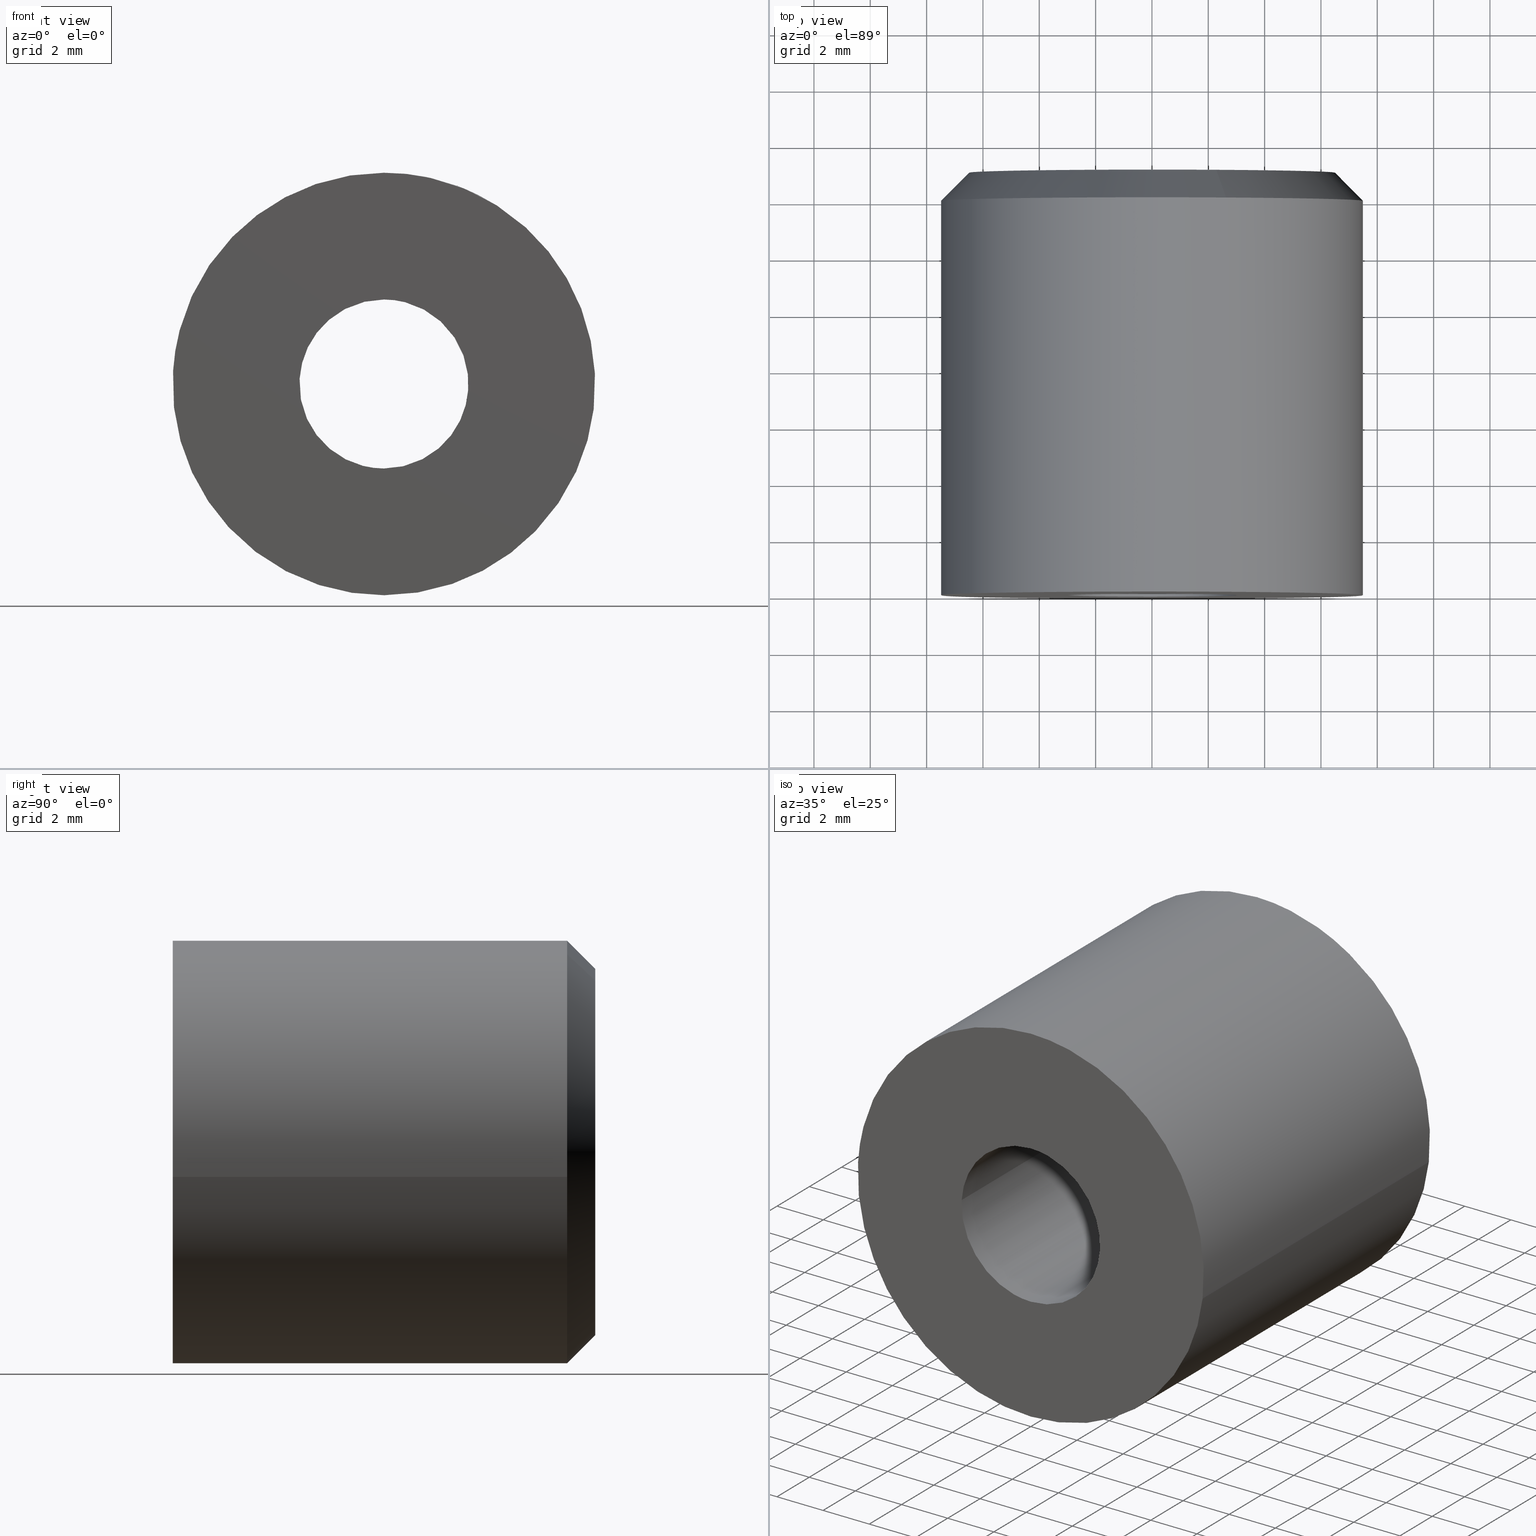
[diagram: canonical four-view strip — front | top / right | iso, engineering-drawing reading convention]
A machine part, canonical four-view strip (front | top / right | iso — engineering-drawing reading convention). The complete STEP part file that produces these views, byte-faithful:
ISO-10303-21;
HEADER;
/****************************************************************
 * Generated by software with PDE/Lib inside                    *
 * PDElib Version 4.4.1-0003, patched  Thursday August 19 11:58 *
 * International Technegroup Inc. (www.iti-oh.com)              *
 ****************************************************************/
FILE_DESCRIPTION((''),'2;1');
FILE_NAME('','2005-12-14T16:28:22',(''),(''),'','CADfix','');
FILE_SCHEMA(('AUTOMOTIVE_DESIGN'));
ENDSEC;
DATA;
#5=APPLICATION_CONTEXT('automotive design');
#6=APPLICATION_PROTOCOL_DEFINITION('Draft International Standard','automotive_design',1998,#5);
#7=PRODUCT_CONTEXT('None',#5,'mechanical');
#8=PRODUCT('boss','','None',(#7));
#9=PRODUCT_RELATED_PRODUCT_CATEGORY('part','description',(#8));
#10=PRODUCT_DEFINITION_FORMATION('None','None',#8);
#11=PRODUCT_DEFINITION_CONTEXT('part definition',#5,'design');
#12=PRODUCT_DEFINITION('None','None',#10,#11);
#18=(NAMED_UNIT(*)PLANE_ANGLE_UNIT()SI_UNIT($,.RADIAN.));
#19=DIMENSIONAL_EXPONENTS(0.0,0.0,0.0,0.0,0.0,0.0,0.0);
#20=PLANE_ANGLE_MEASURE_WITH_UNIT(PLANE_ANGLE_MEASURE(0.017453292500000),#18);
#24=(CONVERSION_BASED_UNIT('DEGREE',#20)NAMED_UNIT(#19)PLANE_ANGLE_UNIT());
#28=(NAMED_UNIT(*)SI_UNIT($,.STERADIAN.)SOLID_ANGLE_UNIT());
#32=(LENGTH_UNIT()NAMED_UNIT(*)SI_UNIT(.MILLI.,.METRE.));
#34=UNCERTAINTY_MEASURE_WITH_UNIT(LENGTH_MEASURE(0.001000000000000),#32,'DISTANCE_ACCURACY_VALUE','');
#36=(GEOMETRIC_REPRESENTATION_CONTEXT(3)GLOBAL_UNCERTAINTY_ASSIGNED_CONTEXT((#34))GLOBAL_UNIT_ASSIGNED_CONTEXT((#24,#28,#32))REPRESENTATION_CONTEXT('None','None'));
#37=AXIS2_PLACEMENT_3D('',#38,#39,#40);
#38=CARTESIAN_POINT('',(0.0,0.0,0.0));
#39=DIRECTION('',(0.0,0.0,1.0));
#40=DIRECTION('',(1.0,0.0,0.0));
#41=ADVANCED_BREP_SHAPE_REPRESENTATION('',(#37,#749),#36);
#42=PRODUCT_DEFINITION_SHAPE('','',#12);
#43=SHAPE_DEFINITION_REPRESENTATION(#42,#41);
#44=CARTESIAN_POINT('',(2.980407580307141,14.905037499999999,0.342301994221081));
#45=CARTESIAN_POINT('',(2.693445457758243,14.905037500000009,2.840867879739621));
#46=CARTESIAN_POINT('',(0.183145618604571,14.905037500000001,2.994404395265600));
#47=CARTESIAN_POINT('',(-2.811258776661029,14.905037500000006,3.177550013870171));
#48=CARTESIAN_POINT('',(-2.994404395265600,14.905037500000001,0.183145618604571));
#49=CARTESIAN_POINT('',(2.980407580307141,-0.372625937500001,0.342301994221081));
#50=CARTESIAN_POINT('',(2.693445457758243,-0.372625937500001,2.840867879739621));
#51=CARTESIAN_POINT('',(0.183145618604571,-0.372625937500001,2.994404395265600));
#52=CARTESIAN_POINT('',(-2.811258776661029,-0.372625937500001,3.177550013870171));
#53=CARTESIAN_POINT('',(-2.994404395265600,-0.372625937500001,0.183145618604571));
#61=(BOUNDED_SURFACE()B_SPLINE_SURFACE(2,1,((#44,#49),(#45,#50),(#46,#51),(#47,#52),(#48,#53)),.UNSPECIFIED.,.F.,.F.,.U.)B_SPLINE_SURFACE_WITH_KNOTS((3,2,3),(2,2),(0.0,4.374095218659882,9.344657967137021),(0.0,15.277663437500010),.UNSPECIFIED.)GEOMETRIC_REPRESENTATION_ITEM()RATIONAL_B_SPLINE_SURFACE(((0.938140952186599,0.938140952186599),(0.742253967444162,0.742253967444162),(1.0,1.0),(0.707106781186548,0.707106781186548),(1.0,1.0)))REPRESENTATION_ITEM('')SURFACE());
#62=CARTESIAN_POINT('',(2.980407580306507,14.541499999999999,0.342301994226599));
#63=VERTEX_POINT('',#62);
#64=CARTESIAN_POINT('',(0.0,14.541499999999999,3.0));
#65=VERTEX_POINT('',#64);
#66=CARTESIAN_POINT('',(2.980407580306507,14.541500000000003,0.342301994226599));
#67=CARTESIAN_POINT('',(2.675169017146770,14.541500000000001,3.000000000000000));
#68=CARTESIAN_POINT('',(0.0,14.541499999999999,3.0));
#76=(BOUNDED_CURVE()B_SPLINE_CURVE(2,(#66,#67,#68),.UNSPECIFIED.,.F.,.U.)B_SPLINE_CURVE_WITH_KNOTS((3,3),(0.269767755877236,0.500000000000000),.UNSPECIFIED.)CURVE()GEOMETRIC_REPRESENTATION_ITEM()RATIONAL_B_SPLINE_CURVE((0.957343736459428,0.730266147776956,1.0))REPRESENTATION_ITEM(''));
#77=EDGE_CURVE('',#63,#65,#76,.T.);
#78=ORIENTED_EDGE('',*,*,#77,.F.);
#79=CARTESIAN_POINT('',(2.980407962932764,7.988144E-016,0.342298662684685));
#80=VERTEX_POINT('',#79);
#81=CARTESIAN_POINT('',(2.980407580306507,14.541499999999999,0.342301994226599));
#82=CARTESIAN_POINT('',(2.980407962932764,7.988144E-016,0.342298662684685));
#83=QUASI_UNIFORM_CURVE('',1,(#81,#82),.UNSPECIFIED.,.F.,.U.);
#84=EDGE_CURVE('',#63,#80,#83,.T.);
#85=ORIENTED_EDGE('',*,*,#84,.T.);
#86=CARTESIAN_POINT('',(0.0,0.0,3.0));
#87=VERTEX_POINT('',#86);
#88=CARTESIAN_POINT('',(2.980407962932764,7.988144E-016,0.342298662684685));
#89=CARTESIAN_POINT('',(2.675172027152508,0.0,3.0));
#90=CARTESIAN_POINT('',(0.0,0.0,3.0));
#98=(BOUNDED_CURVE()B_SPLINE_CURVE(2,(#88,#89,#90),.UNSPECIFIED.,.F.,.U.)B_SPLINE_CURVE_WITH_KNOTS((3,3),(0.269767566702437,0.500000000000000),.UNSPECIFIED.)CURVE()GEOMETRIC_REPRESENTATION_ITEM()RATIONAL_B_SPLINE_CURVE((0.957344109625193,0.730265926144893,1.0))REPRESENTATION_ITEM(''));
#99=EDGE_CURVE('',#80,#87,#98,.T.);
#100=ORIENTED_EDGE('',*,*,#99,.T.);
#101=CARTESIAN_POINT('',(-2.994404452605104,-8.881784E-016,0.183144681107156));
#102=VERTEX_POINT('',#101);
#103=CARTESIAN_POINT('',(0.0,0.0,3.0));
#104=CARTESIAN_POINT('',(-2.822119971134776,0.0,3.000000000000001));
#105=CARTESIAN_POINT('',(-2.994404452605104,-8.881784E-016,0.183144681107156));
#113=(BOUNDED_CURVE()B_SPLINE_CURVE(2,(#103,#104,#105),.UNSPECIFIED.,.F.,.U.)B_SPLINE_CURVE_WITH_KNOTS((3,3),(0.500000000000000,0.739333070284946),.UNSPECIFIED.)CURVE()GEOMETRIC_REPRESENTATION_ITEM()RATIONAL_B_SPLINE_CURVE((1.0,0.719603866702944,0.976072273229979))REPRESENTATION_ITEM(''));
#114=EDGE_CURVE('',#87,#102,#113,.T.);
#115=ORIENTED_EDGE('',*,*,#114,.T.);
#116=CARTESIAN_POINT('',(-2.994404411156125,14.541499999999999,0.183145358796415));
#117=VERTEX_POINT('',#116);
#118=CARTESIAN_POINT('',(-2.994404411156125,14.541499999999999,0.183145358796415));
#119=CARTESIAN_POINT('',(-2.994404452605104,-8.881784E-016,0.183144681107156));
#120=QUASI_UNIFORM_CURVE('',1,(#118,#119),.UNSPECIFIED.,.F.,.U.);
#121=EDGE_CURVE('',#117,#102,#120,.T.);
#122=ORIENTED_EDGE('',*,*,#121,.F.);
#123=CARTESIAN_POINT('',(-2.990752001199405,14.541500000000060,0.235377287183957));
#124=VERTEX_POINT('',#123);
#125=CARTESIAN_POINT('',(-2.990752001199405,14.541500000000058,0.235377287183957));
#126=CARTESIAN_POINT('',(-2.992806128089515,14.541500000000001,0.209277130363528));
#127=CARTESIAN_POINT('',(-2.994404411156125,14.541499999999997,0.183145358796415));
#135=(BOUNDED_CURVE()B_SPLINE_CURVE(2,(#125,#126,#127),.UNSPECIFIED.,.F.,.U.)B_SPLINE_CURVE_WITH_KNOTS((3,3),(0.736331300632719,0.739332992183858),.UNSPECIFIED.)CURVE()GEOMETRIC_REPRESENTATION_ITEM()RATIONAL_B_SPLINE_CURVE((0.969723356171716,0.972855506808519,0.976072105844379))REPRESENTATION_ITEM(''));
#136=EDGE_CURVE('',#124,#117,#135,.T.);
#137=ORIENTED_EDGE('',*,*,#136,.F.);
#138=CARTESIAN_POINT('',(0.0,14.541499999999999,3.0));
#139=CARTESIAN_POINT('',(-2.773171474973852,14.541500000000005,3.0));
#140=CARTESIAN_POINT('',(-2.990752001199405,14.541500000000056,0.235377287183957));
#148=(BOUNDED_CURVE()B_SPLINE_CURVE(2,(#138,#139,#140),.UNSPECIFIED.,.F.,.U.)B_SPLINE_CURVE_WITH_KNOTS((3,3),(0.500000000000000,0.736331300632719),.UNSPECIFIED.)CURVE()GEOMETRIC_REPRESENTATION_ITEM()RATIONAL_B_SPLINE_CURVE((1.0,0.723120658605252,0.969723356171717))REPRESENTATION_ITEM(''));
#149=EDGE_CURVE('',#65,#124,#148,.T.);
#150=ORIENTED_EDGE('',*,*,#149,.F.);
#151=EDGE_LOOP('',(#78,#85,#100,#115,#122,#137,#150));
#152=FACE_OUTER_BOUND('',#151,.T.);
#153=ADVANCED_FACE('',(#152),#61,.F.);
#154=CARTESIAN_POINT('',(-2.994404395265600,14.905037500000001,0.183145618604571));
#155=CARTESIAN_POINT('',(-3.177550013870171,14.905037500000006,-2.811258776661029));
#156=CARTESIAN_POINT('',(-0.183145618604571,14.905037500000001,-2.994404395265600));
#157=CARTESIAN_POINT('',(2.811258776661029,14.905037500000006,-3.177550013870172));
#158=CARTESIAN_POINT('',(2.994404395265600,14.905037500000001,-0.183145618604571));
#159=CARTESIAN_POINT('',(3.010510915184334,14.905037500000008,0.080193654289640));
#160=CARTESIAN_POINT('',(2.980407580307141,14.905037499999999,0.342301994221081));
#161=CARTESIAN_POINT('',(-2.994404395265600,-0.372625937500001,0.183145618604571));
#162=CARTESIAN_POINT('',(-3.177550013870171,-0.372625937500001,-2.811258776661029));
#163=CARTESIAN_POINT('',(-0.183145618604571,-0.372625937500001,-2.994404395265600));
#164=CARTESIAN_POINT('',(2.811258776661029,-0.372625937500001,-3.177550013870172));
#165=CARTESIAN_POINT('',(2.994404395265600,-0.372625937500001,-0.183145618604571));
#166=CARTESIAN_POINT('',(3.010510915184334,-0.372625937500001,0.080193654289640));
#167=CARTESIAN_POINT('',(2.980407580307141,-0.372625937500001,0.342301994221081));
#175=(BOUNDED_SURFACE()B_SPLINE_SURFACE(2,1,((#154,#161),(#155,#162),(#156,#163),(#157,#164),(#158,#165),(#159,#166),(#160,#167)),.UNSPECIFIED.,.F.,.F.,.U.)B_SPLINE_SURFACE_WITH_KNOTS((3,2,2,3),(2,2),(0.0,4.970562748477139,9.941125496954278,10.537593026771541),(0.0,15.277663437500010),.UNSPECIFIED.)GEOMETRIC_REPRESENTATION_ITEM()RATIONAL_B_SPLINE_SURFACE(((1.0,1.0),(0.707106781186548,0.707106781186548),(1.0,1.0),(0.707106781186548,0.707106781186548),(1.0,1.0),(0.964852813742386,0.964852813742386),(0.938140952186599,0.938140952186599)))REPRESENTATION_ITEM('')SURFACE());
#176=CARTESIAN_POINT('',(2.990752001199406,14.541500000000060,-0.235377287183957));
#177=VERTEX_POINT('',#176);
#178=CARTESIAN_POINT('',(2.990752001199406,14.541500000000056,-0.235377287183957));
#179=CARTESIAN_POINT('',(3.000000000000000,14.541500000000003,-0.117870321023428));
#180=CARTESIAN_POINT('',(3.0,14.541499999999999,-1.836910E-016));
#181=CARTESIAN_POINT('',(3.0,14.541500000000003,0.171711705081448));
#182=CARTESIAN_POINT('',(2.980407580306508,14.541499999999997,0.342301994226599));
#190=(BOUNDED_CURVE()B_SPLINE_CURVE(2,(#178,#179,#180,#181,#182),.UNSPECIFIED.,.F.,.U.)B_SPLINE_CURVE_WITH_KNOTS((3,2,3),(0.236331300632719,0.250000000000000,0.269767755877236),.UNSPECIFIED.)CURVE()GEOMETRIC_REPRESENTATION_ITEM()RATIONAL_B_SPLINE_CURVE((0.969723356171716,0.983986122581295,1.0,0.976840633409592,0.957343736459428))REPRESENTATION_ITEM(''));
#191=EDGE_CURVE('',#177,#63,#190,.T.);
#192=ORIENTED_EDGE('',*,*,#191,.F.);
#193=CARTESIAN_POINT('',(0.0,14.541499999999999,-3.0));
#194=VERTEX_POINT('',#193);
#195=CARTESIAN_POINT('',(0.0,14.541499999999999,-3.0));
#196=CARTESIAN_POINT('',(2.773171474973844,14.541500000000008,-3.000000000000001));
#197=CARTESIAN_POINT('',(2.990752001199405,14.541500000000060,-0.235377287183957));
#205=(BOUNDED_CURVE()B_SPLINE_CURVE(2,(#195,#196,#197),.UNSPECIFIED.,.F.,.U.)B_SPLINE_CURVE_WITH_KNOTS((3,3),(0.0,0.236331300632719),.UNSPECIFIED.)CURVE()GEOMETRIC_REPRESENTATION_ITEM()RATIONAL_B_SPLINE_CURVE((1.0,0.723120658605253,0.969723356171716))REPRESENTATION_ITEM(''));
#206=EDGE_CURVE('',#194,#177,#205,.T.);
#207=ORIENTED_EDGE('',*,*,#206,.F.);
#208=CARTESIAN_POINT('',(-2.994404411156126,14.541500000000005,0.183145358796415));
#209=CARTESIAN_POINT('',(-3.000000000000000,14.541499999999997,0.091658029359136));
#210=CARTESIAN_POINT('',(-3.0,14.541499999999999,-1.836910E-016));
#211=CARTESIAN_POINT('',(-3.0,14.541499999999999,-3.0));
#212=CARTESIAN_POINT('',(0.0,14.541499999999999,-3.0));
#220=(BOUNDED_CURVE()B_SPLINE_CURVE(2,(#208,#209,#210,#211,#212),.UNSPECIFIED.,.F.,.U.)B_SPLINE_CURVE_WITH_KNOTS((3,2,3),(0.739332992183859,0.750000000000000,1.0),.UNSPECIFIED.)CURVE()GEOMETRIC_REPRESENTATION_ITEM()RATIONAL_B_SPLINE_CURVE((0.976072105844382,0.987502822982489,1.0,0.707106781186548,1.0))REPRESENTATION_ITEM(''));
#221=EDGE_CURVE('',#117,#194,#220,.T.);
#222=ORIENTED_EDGE('',*,*,#221,.F.);
#223=ORIENTED_EDGE('',*,*,#121,.T.);
#224=CARTESIAN_POINT('',(0.0,0.0,-3.0));
#225=VERTEX_POINT('',#224);
#226=CARTESIAN_POINT('',(-2.994404452605104,-8.881784E-016,0.183144681107156));
#227=CARTESIAN_POINT('',(-3.000000000000000,0.0,0.091657349769728));
#228=CARTESIAN_POINT('',(-3.0,0.0,-1.836910E-016));
#229=CARTESIAN_POINT('',(-3.0,0.0,-3.0));
#230=CARTESIAN_POINT('',(0.0,0.0,-3.0));
#238=(BOUNDED_CURVE()B_SPLINE_CURVE(2,(#226,#227,#228,#229,#230),.UNSPECIFIED.,.F.,.U.)B_SPLINE_CURVE_WITH_KNOTS((3,2,3),(0.739333070284947,0.750000000000000,1.0),.UNSPECIFIED.)CURVE()GEOMETRIC_REPRESENTATION_ITEM()RATIONAL_B_SPLINE_CURVE((0.976072273229982,0.987502914483605,1.0,0.707106781186548,1.0))REPRESENTATION_ITEM(''));
#239=EDGE_CURVE('',#102,#225,#238,.T.);
#240=ORIENTED_EDGE('',*,*,#239,.T.);
#241=CARTESIAN_POINT('',(0.0,0.0,-3.0));
#242=CARTESIAN_POINT('',(3.0,0.0,-3.0));
#243=CARTESIAN_POINT('',(3.0,0.0,-1.836910E-016));
#244=CARTESIAN_POINT('',(3.0,0.0,0.171710022864526));
#245=CARTESIAN_POINT('',(2.980407962932764,7.988144E-016,0.342298662684685));
#253=(BOUNDED_CURVE()B_SPLINE_CURVE(2,(#241,#242,#243,#244,#245),.UNSPECIFIED.,.F.,.U.)B_SPLINE_CURVE_WITH_KNOTS((3,2,3),(0.0,0.250000000000000,0.269767566702437),.UNSPECIFIED.)CURVE()GEOMETRIC_REPRESENTATION_ITEM()RATIONAL_B_SPLINE_CURVE((1.0,0.707106781186548,1.0,0.976840855041655,0.957344109625193))REPRESENTATION_ITEM(''));
#254=EDGE_CURVE('',#225,#80,#253,.T.);
#255=ORIENTED_EDGE('',*,*,#254,.T.);
#256=ORIENTED_EDGE('',*,*,#84,.F.);
#257=EDGE_LOOP('',(#192,#207,#222,#223,#240,#255,#256));
#258=FACE_OUTER_BOUND('',#257,.T.);
#259=ADVANCED_FACE('',(#258),#175,.F.);
#260=CARTESIAN_POINT('',(2.979324836261466,14.530037500000001,-0.234477949798756));
#261=CARTESIAN_POINT('',(2.744846886462710,14.530037500000001,-3.213802786060223));
#262=CARTESIAN_POINT('',(-0.234477949798756,14.530037500000001,-2.979324836261466));
#263=CARTESIAN_POINT('',(-3.213802786060223,14.530037500000001,-2.744846886462710));
#264=CARTESIAN_POINT('',(-2.979324836261466,14.530037500000001,0.234477949798756));
#265=CARTESIAN_POINT('',(3.459551442777388,15.011749062500000,-0.272272603394154));
#266=CARTESIAN_POINT('',(3.187278839383233,15.011749062500003,-3.731824046171542));
#267=CARTESIAN_POINT('',(-0.272272603394154,15.011749062500000,-3.459551442777388));
#268=CARTESIAN_POINT('',(-3.731824046171542,15.011749062500003,-3.187278839383233));
#269=CARTESIAN_POINT('',(-3.459551442777388,15.011749062500000,0.272272603394154));
#277=(BOUNDED_SURFACE()B_SPLINE_SURFACE(2,1,((#260,#265),(#261,#266),(#262,#267),(#263,#268),(#264,#269)),.UNSPECIFIED.,.F.,.F.,.U.)B_SPLINE_SURFACE_WITH_KNOTS((3,2,3),(2,2),(0.0,5.749696906000075,11.499393812000150),(0.0,1.0),.UNSPECIFIED.)GEOMETRIC_REPRESENTATION_ITEM()RATIONAL_B_SPLINE_SURFACE(((1.0,1.0),(0.707106781186548,0.707106781186548),(1.0,1.0),(0.707106781186548,0.707106781186548),(1.0,1.0)))REPRESENTATION_ITEM('')SURFACE());
#278=ORIENTED_EDGE('',*,*,#206,.T.);
#279=CARTESIAN_POINT('',(3.447838598717209,15.000000000002970,-0.271350782597566));
#280=VERTEX_POINT('',#279);
#281=CARTESIAN_POINT('',(2.990752001199406,14.541500000000060,-0.235377287183957));
#282=CARTESIAN_POINT('',(3.447838598717209,15.000000000002970,-0.271350782597566));
#283=QUASI_UNIFORM_CURVE('',1,(#281,#282),.UNSPECIFIED.,.F.,.U.);
#284=EDGE_CURVE('',#177,#280,#283,.T.);
#285=ORIENTED_EDGE('',*,*,#284,.T.);
#286=CARTESIAN_POINT('',(0.0,15.0,-3.458500000000000));
#287=VERTEX_POINT('',#286);
#288=CARTESIAN_POINT('',(0.0,15.0,-3.458500000000000));
#289=CARTESIAN_POINT('',(3.197004515357907,15.000000000000004,-3.458500000000000));
#290=CARTESIAN_POINT('',(3.447838598717209,15.000000000002974,-0.271350782597566));
#298=(BOUNDED_CURVE()B_SPLINE_CURVE(2,(#288,#289,#290),.UNSPECIFIED.,.F.,.U.)B_SPLINE_CURVE_WITH_KNOTS((3,3),(0.0,0.236331300630522),.UNSPECIFIED.)CURVE()GEOMETRIC_REPRESENTATION_ITEM()RATIONAL_B_SPLINE_CURVE((1.0,0.723120658607827,0.969723356167130))REPRESENTATION_ITEM(''));
#299=EDGE_CURVE('',#287,#280,#298,.T.);
#300=ORIENTED_EDGE('',*,*,#299,.F.);
#301=CARTESIAN_POINT('',(-3.447838598717209,15.000000000002970,0.271350782597566));
#302=VERTEX_POINT('',#301);
#303=CARTESIAN_POINT('',(-3.447838598717209,15.000000000002975,0.271350782597566));
#304=CARTESIAN_POINT('',(-3.458500000000000,14.999999999999996,0.135884835108710));
#305=CARTESIAN_POINT('',(-3.458500000000000,15.0,-1.836910E-016));
#306=CARTESIAN_POINT('',(-3.458500000000001,14.999999999999996,-3.458500000000001));
#307=CARTESIAN_POINT('',(0.0,15.0,-3.458500000000000));
#315=(BOUNDED_CURVE()B_SPLINE_CURVE(2,(#303,#304,#305,#306,#307),.UNSPECIFIED.,.F.,.U.)B_SPLINE_CURVE_WITH_KNOTS((3,2,3),(0.736331300630522,0.750000000000000,1.0),.UNSPECIFIED.)CURVE()GEOMETRIC_REPRESENTATION_ITEM()RATIONAL_B_SPLINE_CURVE((0.969723356167130,0.983986122578720,1.0,0.707106781186547,1.0))REPRESENTATION_ITEM(''));
#316=EDGE_CURVE('',#302,#287,#315,.T.);
#317=ORIENTED_EDGE('',*,*,#316,.F.);
#318=CARTESIAN_POINT('',(-2.990752001199405,14.541500000000060,0.235377287183957));
#319=CARTESIAN_POINT('',(-3.447838598717209,15.000000000002970,0.271350782597566));
#320=QUASI_UNIFORM_CURVE('',1,(#318,#319),.UNSPECIFIED.,.F.,.U.);
#321=EDGE_CURVE('',#124,#302,#320,.T.);
#322=ORIENTED_EDGE('',*,*,#321,.F.);
#323=ORIENTED_EDGE('',*,*,#136,.T.);
#324=ORIENTED_EDGE('',*,*,#221,.T.);
#325=EDGE_LOOP('',(#278,#285,#300,#317,#322,#323,#324));
#326=FACE_OUTER_BOUND('',#325,.T.);
#327=ADVANCED_FACE('',(#326),#277,.F.);
#328=CARTESIAN_POINT('',(-2.979324836261466,14.530037500000001,0.234477949798756));
#329=CARTESIAN_POINT('',(-2.744846886462710,14.530037500000001,3.213802786060222));
#330=CARTESIAN_POINT('',(0.234477949798756,14.530037500000001,2.979324836261466));
#331=CARTESIAN_POINT('',(3.213802786060223,14.530037500000001,2.744846886462710));
#332=CARTESIAN_POINT('',(2.979324836261466,14.530037500000001,-0.234477949798756));
#333=CARTESIAN_POINT('',(-3.459551442777388,15.011749062500000,0.272272603394154));
#334=CARTESIAN_POINT('',(-3.187278839383233,15.011749062500003,3.731824046171542));
#335=CARTESIAN_POINT('',(0.272272603394154,15.011749062500000,3.459551442777388));
#336=CARTESIAN_POINT('',(3.731824046171542,15.011749062500003,3.187278839383233));
#337=CARTESIAN_POINT('',(3.459551442777388,15.011749062500000,-0.272272603394154));
#345=(BOUNDED_SURFACE()B_SPLINE_SURFACE(2,1,((#328,#333),(#329,#334),(#330,#335),(#331,#336),(#332,#337)),.UNSPECIFIED.,.F.,.F.,.U.)B_SPLINE_SURFACE_WITH_KNOTS((3,2,3),(2,2),(0.0,5.749696906000075,11.499393812000150),(0.0,1.0),.UNSPECIFIED.)GEOMETRIC_REPRESENTATION_ITEM()RATIONAL_B_SPLINE_SURFACE(((1.0,1.0),(0.707106781186548,0.707106781186548),(1.0,1.0),(0.707106781186548,0.707106781186548),(1.0,1.0)))REPRESENTATION_ITEM('')SURFACE());
#346=ORIENTED_EDGE('',*,*,#191,.T.);
#347=ORIENTED_EDGE('',*,*,#77,.T.);
#348=ORIENTED_EDGE('',*,*,#149,.T.);
#349=ORIENTED_EDGE('',*,*,#321,.T.);
#350=CARTESIAN_POINT('',(0.0,15.0,3.458500000000000));
#351=VERTEX_POINT('',#350);
#352=CARTESIAN_POINT('',(0.0,15.0,3.458500000000000));
#353=CARTESIAN_POINT('',(-3.197004515357899,14.999999999999993,3.458500000000000));
#354=CARTESIAN_POINT('',(-3.447838598717209,15.000000000002977,0.271350782597566));
#362=(BOUNDED_CURVE()B_SPLINE_CURVE(2,(#352,#353,#354),.UNSPECIFIED.,.F.,.U.)B_SPLINE_CURVE_WITH_KNOTS((3,3),(0.500000000000000,0.736331300630521),.UNSPECIFIED.)CURVE()GEOMETRIC_REPRESENTATION_ITEM()RATIONAL_B_SPLINE_CURVE((1.0,0.723120658607828,0.969723356167129))REPRESENTATION_ITEM(''));
#363=EDGE_CURVE('',#351,#302,#362,.T.);
#364=ORIENTED_EDGE('',*,*,#363,.F.);
#365=CARTESIAN_POINT('',(3.447838598717209,15.000000000002977,-0.271350782597566));
#366=CARTESIAN_POINT('',(3.458500000000000,14.999999999999996,-0.135884835108711));
#367=CARTESIAN_POINT('',(3.458500000000000,15.0,-1.836910E-016));
#368=CARTESIAN_POINT('',(3.458500000000001,14.999999999999996,3.458500000000001));
#369=CARTESIAN_POINT('',(0.0,15.0,3.458500000000000));
#377=(BOUNDED_CURVE()B_SPLINE_CURVE(2,(#365,#366,#367,#368,#369),.UNSPECIFIED.,.F.,.U.)B_SPLINE_CURVE_WITH_KNOTS((3,2,3),(0.236331300630521,0.250000000000000,0.500000000000000),.UNSPECIFIED.)CURVE()GEOMETRIC_REPRESENTATION_ITEM()RATIONAL_B_SPLINE_CURVE((0.969723356167130,0.983986122578720,1.0,0.707106781186547,1.0))REPRESENTATION_ITEM(''));
#378=EDGE_CURVE('',#280,#351,#377,.T.);
#379=ORIENTED_EDGE('',*,*,#378,.F.);
#380=ORIENTED_EDGE('',*,*,#284,.F.);
#381=EDGE_LOOP('',(#346,#347,#348,#349,#364,#379,#380));
#382=FACE_OUTER_BOUND('',#381,.T.);
#383=ADVANCED_FACE('',(#382),#345,.F.);
#384=CARTESIAN_POINT('',(2.276726384185430,15.025000000000011,6.061529672578857));
#385=CARTESIAN_POINT('',(1.366156699857269,15.025000000000006,6.403542025389352));
#386=CARTESIAN_POINT('',(0.395289293488199,15.025000000000000,6.462922819781588));
#387=CARTESIAN_POINT('',(-6.067633526293388,15.025000000000004,6.858212113269787));
#388=CARTESIAN_POINT('',(-6.462922819781588,15.025000000000000,0.395289293488199));
#389=CARTESIAN_POINT('',(2.646145018530576,13.974374999999997,7.045065520031082));
#390=CARTESIAN_POINT('',(1.587827492565770,13.974374999999998,7.442572348234863));
#391=CARTESIAN_POINT('',(0.459428415337008,13.974375000000000,7.511588192373564));
#392=CARTESIAN_POINT('',(-7.052159777036556,13.974374999999998,7.971016607710572));
#393=CARTESIAN_POINT('',(-7.511588192373564,13.974375000000000,0.459428415337008));
#401=(BOUNDED_SURFACE()B_SPLINE_SURFACE(2,1,((#384,#389),(#385,#390),(#386,#391),(#387,#392),(#388,#393)),.UNSPECIFIED.,.F.,.F.,.U.)B_SPLINE_SURFACE_WITH_KNOTS((3,2,3),(2,2),(0.0,2.493772752267219,14.962636513603311),(0.0,1.0),.UNSPECIFIED.)GEOMETRIC_REPRESENTATION_ITEM()RATIONAL_B_SPLINE_SURFACE(((0.906274169979695,0.906274169979695),(0.941421356237309,0.941421356237309),(1.0,1.0),(0.707106781186548,0.707106781186548),(1.0,1.0)))REPRESENTATION_ITEM('')SURFACE());
#402=CARTESIAN_POINT('',(2.637134807944995,13.999999999999201,7.021076840822705));
#403=VERTEX_POINT('',#402);
#404=CARTESIAN_POINT('',(0.0,14.0,7.500000000000000));
#405=VERTEX_POINT('',#404);
#406=CARTESIAN_POINT('',(2.637134807944996,13.999999999999202,7.021076840822706));
#407=CARTESIAN_POINT('',(1.362055395509447,14.000000000000004,7.499999999999999));
#408=CARTESIAN_POINT('',(0.0,14.0,7.500000000000000));
#416=(BOUNDED_CURVE()B_SPLINE_CURVE(2,(#406,#407,#408),.UNSPECIFIED.,.F.,.U.)B_SPLINE_CURVE_WITH_KNOTS((3,3),(0.440284170898553,0.500000000000000),.UNSPECIFIED.)CURVE()GEOMETRIC_REPRESENTATION_ITEM()RATIONAL_B_SPLINE_CURVE((0.893499554635329,0.930038554401453,1.0))REPRESENTATION_ITEM(''));
#417=EDGE_CURVE('',#403,#405,#416,.T.);
#418=ORIENTED_EDGE('',*,*,#417,.F.);
#419=CARTESIAN_POINT('',(2.285516833551383,14.999999999999400,6.084933262046600));
#420=VERTEX_POINT('',#419);
#421=CARTESIAN_POINT('',(2.285516833551383,14.999999999999400,6.084933262046600));
#422=CARTESIAN_POINT('',(2.637134807944995,13.999999999999201,7.021076840822705));
#423=QUASI_UNIFORM_CURVE('',1,(#421,#422),.UNSPECIFIED.,.F.,.U.);
#424=EDGE_CURVE('',#420,#403,#423,.T.);
#425=ORIENTED_EDGE('',*,*,#424,.F.);
#426=CARTESIAN_POINT('',(0.0,15.0,6.500000000000000));
#427=VERTEX_POINT('',#426);
#428=CARTESIAN_POINT('',(2.285516833551383,14.999999999999401,6.084933262046599));
#429=CARTESIAN_POINT('',(1.180448009440512,14.999999999999996,6.500000000000000));
#430=CARTESIAN_POINT('',(0.0,15.0,6.500000000000000));
#438=(BOUNDED_CURVE()B_SPLINE_CURVE(2,(#428,#429,#430),.UNSPECIFIED.,.F.,.U.)B_SPLINE_CURVE_WITH_KNOTS((3,3),(0.440284170898601,0.500000000000000),.UNSPECIFIED.)CURVE()GEOMETRIC_REPRESENTATION_ITEM()RATIONAL_B_SPLINE_CURVE((0.893499554635388,0.930038554401508,1.0))REPRESENTATION_ITEM(''));
#439=EDGE_CURVE('',#420,#427,#438,.T.);
#440=ORIENTED_EDGE('',*,*,#439,.T.);
#441=CARTESIAN_POINT('',(-6.487876189743293,14.999999999997840,0.396815506992970));
#442=VERTEX_POINT('',#441);
#443=CARTESIAN_POINT('',(0.0,15.0,6.500000000000000));
#444=CARTESIAN_POINT('',(-6.114589434856309,15.000000000000007,6.500000000000000));
#445=CARTESIAN_POINT('',(-6.487876189743293,14.999999999997849,0.396815506992970));
#453=(BOUNDED_CURVE()B_SPLINE_CURVE(2,(#443,#444,#445),.UNSPECIFIED.,.F.,.U.)B_SPLINE_CURVE_WITH_KNOTS((3,3),(0.500000000000000,0.739332962241103),.UNSPECIFIED.)CURVE()GEOMETRIC_REPRESENTATION_ITEM()RATIONAL_B_SPLINE_CURVE((1.0,0.719603993284179,0.976072041671348))REPRESENTATION_ITEM(''));
#454=EDGE_CURVE('',#427,#442,#453,.T.);
#455=ORIENTED_EDGE('',*,*,#454,.T.);
#456=CARTESIAN_POINT('',(-7.486011067241073,14.000000001838769,0.457862723485314));
#457=VERTEX_POINT('',#456);
#458=CARTESIAN_POINT('',(-6.487876189743293,14.999999999997840,0.396815506992970));
#459=CARTESIAN_POINT('',(-7.486011067241073,14.000000001838769,0.457862723485314));
#460=QUASI_UNIFORM_CURVE('',1,(#458,#459),.UNSPECIFIED.,.F.,.U.);
#461=EDGE_CURVE('',#442,#457,#460,.T.);
#462=ORIENTED_EDGE('',*,*,#461,.T.);
#463=CARTESIAN_POINT('',(0.0,14.0,7.500000000000000));
#464=CARTESIAN_POINT('',(-7.055296750921292,14.000000000000005,7.499999999999999));
#465=CARTESIAN_POINT('',(-7.486011067241073,14.000000001838764,0.457862723485314));
#473=(BOUNDED_CURVE()B_SPLINE_CURVE(2,(#463,#464,#465),.UNSPECIFIED.,.F.,.U.)B_SPLINE_CURVE_WITH_KNOTS((3,3),(0.500000000000000,0.739332992734115),.UNSPECIFIED.)CURVE()GEOMETRIC_REPRESENTATION_ITEM()RATIONAL_B_SPLINE_CURVE((1.0,0.719603957559394,0.976072107023685))REPRESENTATION_ITEM(''));
#474=EDGE_CURVE('',#405,#457,#473,.T.);
#475=ORIENTED_EDGE('',*,*,#474,.F.);
#476=EDGE_LOOP('',(#418,#425,#440,#455,#462,#475));
#477=FACE_OUTER_BOUND('',#476,.T.);
#478=ADVANCED_FACE('',(#477),#401,.T.);
#479=CARTESIAN_POINT('',(-6.462922819781588,15.025000000000000,0.395289293488199));
#480=CARTESIAN_POINT('',(-6.858212113269787,15.025000000000004,-6.067633526293388));
#481=CARTESIAN_POINT('',(-0.395289293488199,15.025000000000000,-6.462922819781588));
#482=CARTESIAN_POINT('',(6.067633526293388,15.025000000000004,-6.858212113269787));
#483=CARTESIAN_POINT('',(6.462922819781588,15.025000000000000,-0.395289293488199));
#484=CARTESIAN_POINT('',(6.754961018078991,15.024999999999997,4.379493042174848));
#485=CARTESIAN_POINT('',(2.276726384185430,15.025000000000011,6.061529672578857));
#486=CARTESIAN_POINT('',(-7.511588192373564,13.974375000000000,0.459428415337008));
#487=CARTESIAN_POINT('',(-7.971016607710572,13.974374999999998,-7.052159777036556));
#488=CARTESIAN_POINT('',(-0.459428415337008,13.974375000000000,-7.511588192373564));
#489=CARTESIAN_POINT('',(7.052159777036556,13.974374999999998,-7.971016607710572));
#490=CARTESIAN_POINT('',(7.511588192373564,13.974375000000000,-0.459428415337009));
#491=CARTESIAN_POINT('',(7.851012125356095,13.974375000000002,5.090103834056694));
#492=CARTESIAN_POINT('',(2.646145018530576,13.974374999999997,7.045065520031082));
#500=(BOUNDED_SURFACE()B_SPLINE_SURFACE(2,1,((#479,#486),(#480,#487),(#481,#488),(#482,#489),(#483,#490),(#484,#491),(#485,#492)),.UNSPECIFIED.,.F.,.F.,.U.)B_SPLINE_SURFACE_WITH_KNOTS((3,2,2,3),(2,2),(0.0,12.468863761336101,24.937727522672191,34.912818531741067),(0.0,1.0),.UNSPECIFIED.)GEOMETRIC_REPRESENTATION_ITEM()RATIONAL_B_SPLINE_SURFACE(((1.0,1.0),(0.707106781186548,0.707106781186548),(1.0,1.0),(0.707106781186548,0.707106781186548),(1.0,1.0),(0.765685424949238,0.765685424949238),(0.906274169979695,0.906274169979695)))REPRESENTATION_ITEM('')SURFACE());
#501=CARTESIAN_POINT('',(7.447572004499123,14.0,-0.885252075839787));
#502=VERTEX_POINT('',#501);
#503=CARTESIAN_POINT('',(7.447572004499123,14.000000000000004,-0.885252075839787));
#504=CARTESIAN_POINT('',(7.500000000000000,14.0,-0.444178530586817));
#505=CARTESIAN_POINT('',(7.500000000000000,14.0,-1.836910E-016));
#506=CARTESIAN_POINT('',(7.499999999999999,13.999999999999998,5.194571967695637));
#507=CARTESIAN_POINT('',(2.637134807944996,13.999999999999195,7.021076840822705));
#515=(BOUNDED_CURVE()B_SPLINE_CURVE(2,(#503,#504,#505,#506,#507),.UNSPECIFIED.,.F.,.U.)B_SPLINE_CURVE_WITH_KNOTS((3,2,3),(0.229562579808786,0.250000000000000,0.440284170898553),.UNSPECIFIED.)CURVE()GEOMETRIC_REPRESENTATION_ITEM()RATIONAL_B_SPLINE_CURVE((0.956026962526900,0.976056072863809,1.0,0.777068226785094,0.893499554635330))REPRESENTATION_ITEM(''));
#516=EDGE_CURVE('',#502,#403,#515,.T.);
#517=ORIENTED_EDGE('',*,*,#516,.F.);
#518=CARTESIAN_POINT('',(0.0,14.0,-7.500000000000000));
#519=VERTEX_POINT('',#518);
#520=CARTESIAN_POINT('',(0.0,14.0,-7.500000000000000));
#521=CARTESIAN_POINT('',(6.661313163702265,13.999999999999995,-7.499999999999999));
#522=CARTESIAN_POINT('',(7.447572004499123,14.000000000000004,-0.885252075839787));
#530=(BOUNDED_CURVE()B_SPLINE_CURVE(2,(#520,#521,#522),.UNSPECIFIED.,.F.,.U.)B_SPLINE_CURVE_WITH_KNOTS((3,3),(0.0,0.229562579808786),.UNSPECIFIED.)CURVE()GEOMETRIC_REPRESENTATION_ITEM()RATIONAL_B_SPLINE_CURVE((1.0,0.731050708322738,0.956026962526900))REPRESENTATION_ITEM(''));
#531=EDGE_CURVE('',#519,#502,#530,.T.);
#532=ORIENTED_EDGE('',*,*,#531,.F.);
#533=CARTESIAN_POINT('',(-7.486011067241073,14.000000001838764,0.457862723485314));
#534=CARTESIAN_POINT('',(-7.500000000000000,14.000000000000002,0.229145061427841));
#535=CARTESIAN_POINT('',(-7.500000000000000,14.0,-1.836910E-016));
#536=CARTESIAN_POINT('',(-7.500000000000000,13.999999999999998,-7.500000000000000));
#537=CARTESIAN_POINT('',(0.0,14.0,-7.500000000000000));
#545=(BOUNDED_CURVE()B_SPLINE_CURVE(2,(#533,#534,#535,#536,#537),.UNSPECIFIED.,.F.,.U.)B_SPLINE_CURVE_WITH_KNOTS((3,2,3),(0.739332992734115,0.750000000000000,1.0),.UNSPECIFIED.)CURVE()GEOMETRIC_REPRESENTATION_ITEM()RATIONAL_B_SPLINE_CURVE((0.976072107023685,0.987502823627153,1.0,0.707106781186547,1.0))REPRESENTATION_ITEM(''));
#546=EDGE_CURVE('',#457,#519,#545,.T.);
#547=ORIENTED_EDGE('',*,*,#546,.F.);
#548=ORIENTED_EDGE('',*,*,#461,.F.);
#549=CARTESIAN_POINT('',(0.0,15.0,-6.500000000000000));
#550=VERTEX_POINT('',#549);
#551=CARTESIAN_POINT('',(-6.487876189743293,14.999999999997838,0.396815506992970));
#552=CARTESIAN_POINT('',(-6.500000000000000,14.999999999999998,0.198592961457141));
#553=CARTESIAN_POINT('',(-6.500000000000000,15.0,-1.836910E-016));
#554=CARTESIAN_POINT('',(-6.500000000000000,14.999999999999996,-6.500000000000000));
#555=CARTESIAN_POINT('',(0.0,15.0,-6.500000000000000));
#563=(BOUNDED_CURVE()B_SPLINE_CURVE(2,(#551,#552,#553,#554,#555),.UNSPECIFIED.,.F.,.U.)B_SPLINE_CURVE_WITH_KNOTS((3,2,3),(0.739332962241103,0.750000000000000,1.0),.UNSPECIFIED.)CURVE()GEOMETRIC_REPRESENTATION_ITEM()RATIONAL_B_SPLINE_CURVE((0.976072041671347,0.987502787902368,1.0,0.707106781186547,1.0))REPRESENTATION_ITEM(''));
#564=EDGE_CURVE('',#442,#550,#563,.T.);
#565=ORIENTED_EDGE('',*,*,#564,.T.);
#566=CARTESIAN_POINT('',(0.0,15.0,-6.500000000000000));
#567=CARTESIAN_POINT('',(6.500000000000000,14.999999999999996,-6.500000000000000));
#568=CARTESIAN_POINT('',(6.500000000000000,15.0,-1.836910E-016));
#569=CARTESIAN_POINT('',(6.500000000000001,15.0,4.501962372004321));
#570=CARTESIAN_POINT('',(2.285516833551383,14.999999999999401,6.084933262046599));
#578=(BOUNDED_CURVE()B_SPLINE_CURVE(2,(#566,#567,#568,#569,#570),.UNSPECIFIED.,.F.,.U.)B_SPLINE_CURVE_WITH_KNOTS((3,2,3),(0.0,0.250000000000000,0.440284170898601),.UNSPECIFIED.)CURVE()GEOMETRIC_REPRESENTATION_ITEM()RATIONAL_B_SPLINE_CURVE((1.0,0.707106781186547,1.0,0.777068226785039,0.893499554635388))REPRESENTATION_ITEM(''));
#579=EDGE_CURVE('',#550,#420,#578,.T.);
#580=ORIENTED_EDGE('',*,*,#579,.T.);
#581=ORIENTED_EDGE('',*,*,#424,.T.);
#582=EDGE_LOOP('',(#517,#532,#547,#548,#565,#580,#581));
#583=FACE_OUTER_BOUND('',#582,.T.);
#584=ADVANCED_FACE('',(#583),#500,.T.);
#585=CARTESIAN_POINT('',(7.447571447727496,14.350000000000001,-0.885256759925689));
#586=CARTESIAN_POINT('',(7.472907115864541,14.350000000000001,-0.672110464784833));
#587=CARTESIAN_POINT('',(7.486010988164000,14.350000000000000,-0.457864046511427));
#588=CARTESIAN_POINT('',(7.943875034675429,14.350000000000003,7.028146941652573));
#589=CARTESIAN_POINT('',(0.457864046511427,14.350000000000000,7.486010988164000));
#590=CARTESIAN_POINT('',(-7.028146941652573,14.350000000000003,7.943875034675429));
#591=CARTESIAN_POINT('',(-7.486010988164000,14.350000000000000,0.457864046511427));
#592=CARTESIAN_POINT('',(7.447571447727496,-0.358750000000002,-0.885256759925689));
#593=CARTESIAN_POINT('',(7.472907115864541,-0.358750000000002,-0.672110464784833));
#594=CARTESIAN_POINT('',(7.486010988164000,-0.358750000000002,-0.457864046511427));
#595=CARTESIAN_POINT('',(7.943875034675429,-0.358750000000002,7.028146941652573));
#596=CARTESIAN_POINT('',(0.457864046511427,-0.358750000000002,7.486010988164000));
#597=CARTESIAN_POINT('',(-7.028146941652573,-0.358750000000002,7.943875034675429));
#598=CARTESIAN_POINT('',(-7.486010988164000,-0.358750000000002,0.457864046511427));
#606=(BOUNDED_SURFACE()B_SPLINE_SURFACE(2,1,((#585,#592),(#586,#593),(#587,#594),(#588,#595),(#589,#596),(#590,#597),(#591,#598)),.UNSPECIFIED.,.F.,.F.,.U.)B_SPLINE_SURFACE_WITH_KNOTS((3,2,2,3),(2,2),(0.0,0.497056274847715,12.923463146040559,25.349870017233410),(0.0,14.708750000000000),.UNSPECIFIED.)GEOMETRIC_REPRESENTATION_ITEM()RATIONAL_B_SPLINE_SURFACE(((0.977505800795127,0.977505800795127),(0.988284271247462,0.988284271247462),(1.0,1.0),(0.707106781186548,0.707106781186548),(1.0,1.0),(0.707106781186548,0.707106781186548),(1.0,1.0)))REPRESENTATION_ITEM('')SURFACE());
#607=CARTESIAN_POINT('',(7.447572011452393,1.611096E-015,-0.885252017342033));
#608=VERTEX_POINT('',#607);
#609=CARTESIAN_POINT('',(0.0,-1.377682E-015,7.500000000000000));
#610=VERTEX_POINT('',#609);
#611=CARTESIAN_POINT('',(7.447572011452393,1.611096E-015,-0.885252017342033));
#612=CARTESIAN_POINT('',(7.500000000000000,-1.377682E-015,-0.444178501028731));
#613=CARTESIAN_POINT('',(7.500000000000000,-1.377682E-015,-1.836910E-016));
#614=CARTESIAN_POINT('',(7.500000000000000,-1.377682E-015,7.500000000000000));
#615=CARTESIAN_POINT('',(0.0,-1.377682E-015,7.500000000000000));
#623=(BOUNDED_CURVE()B_SPLINE_CURVE(2,(#611,#612,#613,#614,#615),.UNSPECIFIED.,.F.,.U.)B_SPLINE_CURVE_WITH_KNOTS((3,2,3),(0.229562581136241,0.250000000000000,0.500000000000000),.UNSPECIFIED.)CURVE()GEOMETRIC_REPRESENTATION_ITEM()RATIONAL_B_SPLINE_CURVE((0.956026965128767,0.976056074419019,1.0,0.707106781186547,1.0))REPRESENTATION_ITEM(''));
#624=EDGE_CURVE('',#608,#610,#623,.T.);
#625=ORIENTED_EDGE('',*,*,#624,.F.);
#626=CARTESIAN_POINT('',(7.447572004499123,14.0,-0.885252075839787));
#627=CARTESIAN_POINT('',(7.447572011452393,1.611096E-015,-0.885252017342033));
#628=QUASI_UNIFORM_CURVE('',1,(#626,#627),.UNSPECIFIED.,.F.,.U.);
#629=EDGE_CURVE('',#502,#608,#628,.T.);
#630=ORIENTED_EDGE('',*,*,#629,.F.);
#631=ORIENTED_EDGE('',*,*,#516,.T.);
#632=ORIENTED_EDGE('',*,*,#417,.T.);
#633=ORIENTED_EDGE('',*,*,#474,.T.);
#634=CARTESIAN_POINT('',(-7.486011152008860,8.099600E-016,0.457861367655936));
#635=VERTEX_POINT('',#634);
#636=CARTESIAN_POINT('',(-7.486011067241073,14.000000001838769,0.457862723485314));
#637=CARTESIAN_POINT('',(-7.486011152008860,8.099600E-016,0.457861367655936));
#638=QUASI_UNIFORM_CURVE('',1,(#636,#637),.UNSPECIFIED.,.F.,.U.);
#639=EDGE_CURVE('',#457,#635,#638,.T.);
#640=ORIENTED_EDGE('',*,*,#639,.T.);
#641=CARTESIAN_POINT('',(0.0,-1.377682E-015,7.500000000000000));
#642=CARTESIAN_POINT('',(-7.055298031235735,-1.377682E-015,7.499999999999999));
#643=CARTESIAN_POINT('',(-7.486011152008861,8.099600E-016,0.457861367655936));
#651=(BOUNDED_CURVE()B_SPLINE_CURVE(2,(#641,#642,#643),.UNSPECIFIED.,.F.,.U.)B_SPLINE_CURVE_WITH_KNOTS((3,3),(0.500000000000000,0.739333023987528),.UNSPECIFIED.)CURVE()GEOMETRIC_REPRESENTATION_ITEM()RATIONAL_B_SPLINE_CURVE((1.0,0.719603920943743,0.976072174005725))REPRESENTATION_ITEM(''));
#652=EDGE_CURVE('',#610,#635,#651,.T.);
#653=ORIENTED_EDGE('',*,*,#652,.F.);
#654=EDGE_LOOP('',(#625,#630,#631,#632,#633,#640,#653));
#655=FACE_OUTER_BOUND('',#654,.T.);
#656=ADVANCED_FACE('',(#655),#606,.T.);
#657=CARTESIAN_POINT('',(-7.486010988164000,14.350000000000000,0.457864046511427));
#658=CARTESIAN_POINT('',(-7.943875034675429,14.350000000000003,-7.028146941652573));
#659=CARTESIAN_POINT('',(-0.457864046511427,14.350000000000000,-7.486010988164000));
#660=CARTESIAN_POINT('',(6.611576181296258,14.350000000000000,-7.918396475493956));
#661=CARTESIAN_POINT('',(7.447571447727496,14.350000000000001,-0.885256759925689));
#662=CARTESIAN_POINT('',(-7.486010988164000,-0.358750000000002,0.457864046511427));
#663=CARTESIAN_POINT('',(-7.943875034675429,-0.358750000000002,-7.028146941652573));
#664=CARTESIAN_POINT('',(-0.457864046511427,-0.358750000000002,-7.486010988164000));
#665=CARTESIAN_POINT('',(6.611576181296258,-0.358750000000002,-7.918396475493956));
#666=CARTESIAN_POINT('',(7.447571447727496,-0.358750000000002,-0.885256759925689));
#674=(BOUNDED_SURFACE()B_SPLINE_SURFACE(2,1,((#657,#662),(#658,#663),(#659,#664),(#660,#665),(#661,#666)),.UNSPECIFIED.,.F.,.F.,.U.)B_SPLINE_SURFACE_WITH_KNOTS((3,2,3),(2,2),(0.0,12.426406871192849,24.355757467537980),(0.0,14.708750000000000),.UNSPECIFIED.)GEOMETRIC_REPRESENTATION_ITEM()RATIONAL_B_SPLINE_SURFACE(((1.0,1.0),(0.707106781186548,0.707106781186548),(1.0,1.0),(0.718822509939086,0.718822509939086),(0.977505800795127,0.977505800795127)))REPRESENTATION_ITEM('')SURFACE());
#675=CARTESIAN_POINT('',(0.0,-1.377682E-015,-7.500000000000000));
#676=VERTEX_POINT('',#675);
#677=CARTESIAN_POINT('',(0.0,-1.377682E-015,-7.500000000000000));
#678=CARTESIAN_POINT('',(6.661313216392585,-1.377682E-015,-7.499999999999999));
#679=CARTESIAN_POINT('',(7.447572011452393,1.611096E-015,-0.885252017342033));
#687=(BOUNDED_CURVE()B_SPLINE_CURVE(2,(#677,#678,#679),.UNSPECIFIED.,.F.,.U.)B_SPLINE_CURVE_WITH_KNOTS((3,3),(0.0,0.229562581136241),.UNSPECIFIED.)CURVE()GEOMETRIC_REPRESENTATION_ITEM()RATIONAL_B_SPLINE_CURVE((1.0,0.731050706767529,0.956026965128767))REPRESENTATION_ITEM(''));
#688=EDGE_CURVE('',#676,#608,#687,.T.);
#689=ORIENTED_EDGE('',*,*,#688,.F.);
#690=CARTESIAN_POINT('',(-7.486011152008861,8.099600E-016,0.457861367655936));
#691=CARTESIAN_POINT('',(-7.500000000000000,-1.377682E-015,0.229144381556083));
#692=CARTESIAN_POINT('',(-7.500000000000000,-1.377682E-015,-1.836910E-016));
#693=CARTESIAN_POINT('',(-7.500000000000000,-1.377682E-015,-7.500000000000000));
#694=CARTESIAN_POINT('',(0.0,-1.377682E-015,-7.500000000000000));
#702=(BOUNDED_CURVE()B_SPLINE_CURVE(2,(#690,#691,#692,#693,#694),.UNSPECIFIED.,.F.,.U.)B_SPLINE_CURVE_WITH_KNOTS((3,2,3),(0.739333023987528,0.750000000000000,1.0),.UNSPECIFIED.)CURVE()GEOMETRIC_REPRESENTATION_ITEM()RATIONAL_B_SPLINE_CURVE((0.976072174005725,0.987502860242804,1.0,0.707106781186547,1.0))REPRESENTATION_ITEM(''));
#703=EDGE_CURVE('',#635,#676,#702,.T.);
#704=ORIENTED_EDGE('',*,*,#703,.F.);
#705=ORIENTED_EDGE('',*,*,#639,.F.);
#706=ORIENTED_EDGE('',*,*,#546,.T.);
#707=ORIENTED_EDGE('',*,*,#531,.T.);
#708=ORIENTED_EDGE('',*,*,#629,.T.);
#709=EDGE_LOOP('',(#689,#704,#705,#706,#707,#708));
#710=FACE_OUTER_BOUND('',#709,.T.);
#711=ADVANCED_FACE('',(#710),#674,.T.);
#712=CARTESIAN_POINT('',(-8.249067709212007,-6.888411E-016,8.249249970927089));
#713=CARTESIAN_POINT('',(-8.249067709212007,-6.888411E-016,-8.249250373258443));
#714=CARTESIAN_POINT('',(8.249113574986160,-6.888411E-016,8.249249970927089));
#715=CARTESIAN_POINT('',(8.249113574986160,-6.888411E-016,-8.249250373258443));
#716=B_SPLINE_SURFACE_WITH_KNOTS('',1,1,((#712,#714),(#713,#715)),.UNSPECIFIED.,.F.,.F.,.U.,(2,2),(2,2),(0.0,16.498500344185530),(0.0,16.498181284198171),.UNSPECIFIED.);
#717=ORIENTED_EDGE('',*,*,#688,.T.);
#718=ORIENTED_EDGE('',*,*,#624,.T.);
#719=ORIENTED_EDGE('',*,*,#652,.T.);
#720=ORIENTED_EDGE('',*,*,#703,.T.);
#721=EDGE_LOOP('',(#717,#718,#719,#720));
#722=FACE_OUTER_BOUND('',#721,.T.);
#723=ORIENTED_EDGE('',*,*,#114,.F.);
#724=ORIENTED_EDGE('',*,*,#99,.F.);
#725=ORIENTED_EDGE('',*,*,#254,.F.);
#726=ORIENTED_EDGE('',*,*,#239,.F.);
#727=EDGE_LOOP('',(#723,#724,#725,#726));
#728=FACE_BOUND('',#727,.T.);
#729=ADVANCED_FACE('',(#722,#728),#716,.T.);
#730=CARTESIAN_POINT('',(-7.149191782424748,15.0,-7.149349974803477));
#731=CARTESIAN_POINT('',(-7.149191782424748,15.0,7.149350323490650));
#732=CARTESIAN_POINT('',(7.149226883600057,15.0,-7.149349974803477));
#733=CARTESIAN_POINT('',(7.149226883600057,15.0,7.149350323490650));
#734=B_SPLINE_SURFACE_WITH_KNOTS('',1,1,((#730,#732),(#731,#733)),.UNSPECIFIED.,.F.,.F.,.U.,(2,2),(2,2),(0.0,14.298700298294129),(0.0,14.298418666024810),.UNSPECIFIED.);
#735=ORIENTED_EDGE('',*,*,#564,.F.);
#736=ORIENTED_EDGE('',*,*,#454,.F.);
#737=ORIENTED_EDGE('',*,*,#439,.F.);
#738=ORIENTED_EDGE('',*,*,#579,.F.);
#739=EDGE_LOOP('',(#735,#736,#737,#738));
#740=FACE_OUTER_BOUND('',#739,.T.);
#741=ORIENTED_EDGE('',*,*,#363,.T.);
#742=ORIENTED_EDGE('',*,*,#316,.T.);
#743=ORIENTED_EDGE('',*,*,#299,.T.);
#744=ORIENTED_EDGE('',*,*,#378,.T.);
#745=EDGE_LOOP('',(#741,#742,#743,#744));
#746=FACE_BOUND('',#745,.T.);
#747=ADVANCED_FACE('',(#740,#746),#734,.T.);
#748=CLOSED_SHELL('',(#153,#259,#327,#383,#478,#584,#656,#711,#729,#747));
#749=MANIFOLD_SOLID_BREP('boss',#748);
#755=(NAMED_UNIT(*)PLANE_ANGLE_UNIT()SI_UNIT($,.RADIAN.));
#756=DIMENSIONAL_EXPONENTS(0.0,0.0,0.0,0.0,0.0,0.0,0.0);
#757=PLANE_ANGLE_MEASURE_WITH_UNIT(PLANE_ANGLE_MEASURE(0.017453292500000),#755);
#761=(CONVERSION_BASED_UNIT('DEGREE',#757)NAMED_UNIT(#756)PLANE_ANGLE_UNIT());
#765=(NAMED_UNIT(*)SI_UNIT($,.STERADIAN.)SOLID_ANGLE_UNIT());
#769=(LENGTH_UNIT()NAMED_UNIT(*)SI_UNIT(.MILLI.,.METRE.));
#771=UNCERTAINTY_MEASURE_WITH_UNIT(LENGTH_MEASURE(0.001000000000000),#769,'DISTANCE_ACCURACY_VALUE','');
#773=(GEOMETRIC_REPRESENTATION_CONTEXT(3)GLOBAL_UNCERTAINTY_ASSIGNED_CONTEXT((#771))GLOBAL_UNIT_ASSIGNED_CONTEXT((#761,#765,#769))REPRESENTATION_CONTEXT('','3D'));
ENDSEC;
END-ISO-10303-21;
